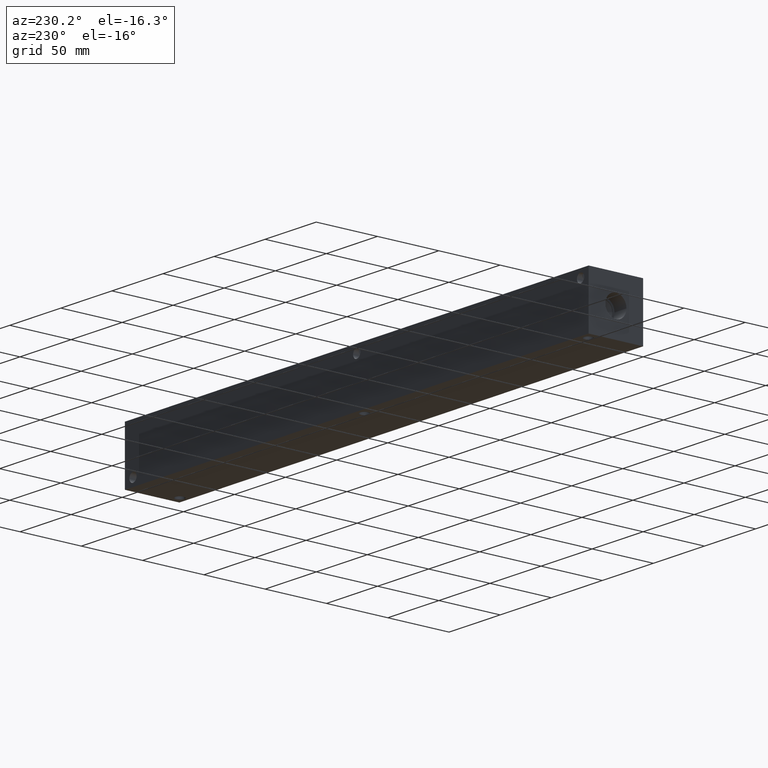
[diagram: clean part render]
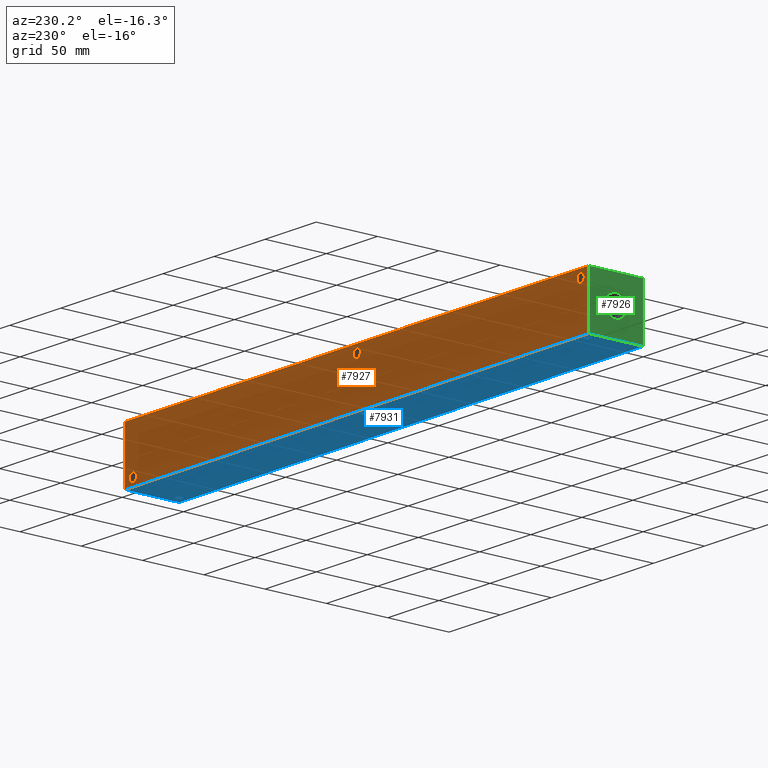
[diagram: same view with three faces highlighted in distinct colors, each labeled with its STEP entity id]
A machine part, auxiliary view with three faces highlighted in distinct colors.
Their STEP definitions:

[orange] entity #7927 — the highlighted planar face has unit normal (0, 1, 0).
#132=CIRCLE('',#8196,3.5687);
#135=CIRCLE('',#8206,3.5687);
#138=CIRCLE('',#8215,3.5687);
#341=FACE_BOUND('',#1478,.T.);
#342=FACE_BOUND('',#1479,.T.);
#343=FACE_BOUND('',#1480,.T.);
#600=PLANE('',#8447);
#1006=FACE_OUTER_BOUND('',#1477,.T.);
#1477=EDGE_LOOP('',(#7098,#7099,#7100,#7101));
#1478=EDGE_LOOP('',(#7102));
#1479=EDGE_LOOP('',(#7103));
#1480=EDGE_LOOP('',(#7104));
#1772=LINE('',#12047,#2507);
#2231=LINE('',#13524,#2966);
#2232=LINE('',#13527,#2967);
#2233=LINE('',#13528,#2968);
#2507=VECTOR('',#8874,10.);
#2966=VECTOR('',#10185,10.);
#2967=VECTOR('',#10188,10.);
#2968=VECTOR('',#10189,10.);
#3422=VERTEX_POINT('',#12044);
#3423=VERTEX_POINT('',#12046);
#3716=VERTEX_POINT('',#13022);
#3721=VERTEX_POINT('',#13040);
#3726=VERTEX_POINT('',#13056);
#3886=VERTEX_POINT('',#13520);
#3888=VERTEX_POINT('',#13526);
#4312=EDGE_CURVE('',#3422,#3423,#1772,.T.);
#4741=EDGE_CURVE('',#3716,#3716,#132,.T.);
#4751=EDGE_CURVE('',#3721,#3721,#135,.T.);
#4760=EDGE_CURVE('',#3726,#3726,#138,.T.);
#4971=EDGE_CURVE('',#3886,#3423,#2231,.T.);
#4972=EDGE_CURVE('',#3888,#3886,#2232,.T.);
#4973=EDGE_CURVE('',#3888,#3422,#2233,.T.);
#7098=ORIENTED_EDGE('',*,*,#4972,.T.);
#7099=ORIENTED_EDGE('',*,*,#4971,.T.);
#7100=ORIENTED_EDGE('',*,*,#4312,.F.);
#7101=ORIENTED_EDGE('',*,*,#4973,.F.);
#7102=ORIENTED_EDGE('',*,*,#4741,.T.);
#7103=ORIENTED_EDGE('',*,*,#4751,.T.);
#7104=ORIENTED_EDGE('',*,*,#4760,.T.);
#7927=ADVANCED_FACE('',(#1006,#341,#342,#343),#600,.T.);
#8196=AXIS2_PLACEMENT_3D('',#13024,#9605,#9606);
#8206=AXIS2_PLACEMENT_3D('',#13042,#9628,#9629);
#8215=AXIS2_PLACEMENT_3D('',#13058,#9648,#9649);
#8447=AXIS2_PLACEMENT_3D('',#13525,#10186,#10187);
#8874=DIRECTION('',(-1.,0.,0.));
#9605=DIRECTION('center_axis',(0.,-1.,0.));
#9606=DIRECTION('ref_axis',(1.,0.,0.));
#9628=DIRECTION('center_axis',(0.,-1.,0.));
#9629=DIRECTION('ref_axis',(1.,0.,0.));
#9648=DIRECTION('center_axis',(0.,-1.,0.));
#9649=DIRECTION('ref_axis',(1.,0.,0.));
#10185=DIRECTION('',(0.,0.,1.));
#10186=DIRECTION('center_axis',(0.,1.,0.));
#10187=DIRECTION('ref_axis',(-1.,0.,0.));
#10188=DIRECTION('',(-1.,0.,0.));
#10189=DIRECTION('',(0.,0.,1.));
#12044=CARTESIAN_POINT('',(454.025,44.45,44.45));
#12046=CARTESIAN_POINT('',(0.,44.45,44.45));
#12047=CARTESIAN_POINT('',(454.025,44.45,44.45));
#13022=CARTESIAN_POINT('',(442.5061,44.45,6.35));
#13024=CARTESIAN_POINT('Origin',(446.0748,44.45,6.35));
#13040=CARTESIAN_POINT('',(4.3561,44.45,38.1));
#13042=CARTESIAN_POINT('Origin',(7.9248,44.45,38.1));
#13056=CARTESIAN_POINT('',(223.4565,44.45,38.1));
#13058=CARTESIAN_POINT('Origin',(227.0252,44.45,38.1));
#13520=CARTESIAN_POINT('',(0.,44.45,0.));
#13524=CARTESIAN_POINT('',(0.,44.45,0.));
#13525=CARTESIAN_POINT('Origin',(454.025,44.45,0.));
#13526=CARTESIAN_POINT('',(454.025,44.45,0.));
#13527=CARTESIAN_POINT('',(454.025,44.45,0.));
#13528=CARTESIAN_POINT('',(454.025,44.45,0.));

[blue] entity #7931 — the highlighted planar face has unit normal (0, 0, 1).
#209=CIRCLE('',#8329,3.5687);
#210=CIRCLE('',#8331,3.5687);
#211=CIRCLE('',#8333,3.5687);
#358=FACE_BOUND('',#1499,.T.);
#359=FACE_BOUND('',#1500,.T.);
#360=FACE_BOUND('',#1501,.T.);
#604=PLANE('',#8451);
#1010=FACE_OUTER_BOUND('',#1498,.T.);
#1498=EDGE_LOOP('',(#7144,#7145,#7146,#7147));
#1499=EDGE_LOOP('',(#7148));
#1500=EDGE_LOOP('',(#7149));
#1501=EDGE_LOOP('',(#7150));
#2229=LINE('',#13522,#2964);
#2232=LINE('',#13527,#2967);
#2234=LINE('',#13531,#2969);
#2236=LINE('',#13534,#2971);
#2964=VECTOR('',#10183,10.);
#2967=VECTOR('',#10188,10.);
#2969=VECTOR('',#10192,10.);
#2971=VECTOR('',#10196,10.);
#3807=VERTEX_POINT('',#13284);
#3808=VERTEX_POINT('',#13288);
#3809=VERTEX_POINT('',#13292);
#3886=VERTEX_POINT('',#13520);
#3887=VERTEX_POINT('',#13521);
#3888=VERTEX_POINT('',#13526);
#3889=VERTEX_POINT('',#13530);
#4864=EDGE_CURVE('',#3807,#3807,#209,.T.);
#4866=EDGE_CURVE('',#3808,#3808,#210,.T.);
#4868=EDGE_CURVE('',#3809,#3809,#211,.T.);
#4969=EDGE_CURVE('',#3886,#3887,#2229,.T.);
#4972=EDGE_CURVE('',#3888,#3886,#2232,.T.);
#4974=EDGE_CURVE('',#3889,#3888,#2234,.T.);
#4976=EDGE_CURVE('',#3887,#3889,#2236,.T.);
#7144=ORIENTED_EDGE('',*,*,#4976,.F.);
#7145=ORIENTED_EDGE('',*,*,#4969,.F.);
#7146=ORIENTED_EDGE('',*,*,#4972,.F.);
#7147=ORIENTED_EDGE('',*,*,#4974,.F.);
#7148=ORIENTED_EDGE('',*,*,#4864,.T.);
#7149=ORIENTED_EDGE('',*,*,#4866,.T.);
#7150=ORIENTED_EDGE('',*,*,#4868,.T.);
#7931=ADVANCED_FACE('',(#1010,#358,#359,#360),#604,.F.);
#8329=AXIS2_PLACEMENT_3D('',#13286,#9909,#9910);
#8331=AXIS2_PLACEMENT_3D('',#13290,#9914,#9915);
#8333=AXIS2_PLACEMENT_3D('',#13294,#9919,#9920);
#8451=AXIS2_PLACEMENT_3D('',#13536,#10199,#10200);
#9909=DIRECTION('center_axis',(0.,0.,1.));
#9910=DIRECTION('ref_axis',(1.,0.,0.));
#9914=DIRECTION('center_axis',(0.,0.,1.));
#9915=DIRECTION('ref_axis',(1.,0.,0.));
#9919=DIRECTION('center_axis',(0.,0.,1.));
#9920=DIRECTION('ref_axis',(1.,0.,0.));
#10183=DIRECTION('',(0.,-1.,0.));
#10188=DIRECTION('',(-1.,0.,0.));
#10192=DIRECTION('',(0.,1.,0.));
#10196=DIRECTION('',(1.,0.,0.));
#10199=DIRECTION('center_axis',(0.,0.,1.));
#10200=DIRECTION('ref_axis',(1.,0.,0.));
#13284=CARTESIAN_POINT('',(442.5061,6.35,0.));
#13286=CARTESIAN_POINT('Origin',(446.0748,6.35,0.));
#13288=CARTESIAN_POINT('',(4.3561,38.1,0.));
#13290=CARTESIAN_POINT('Origin',(7.9248,38.1,0.));
#13292=CARTESIAN_POINT('',(223.4565,38.1,0.));
#13294=CARTESIAN_POINT('Origin',(227.0252,38.1,0.));
#13520=CARTESIAN_POINT('',(0.,44.45,0.));
#13521=CARTESIAN_POINT('',(0.,0.,0.));
#13522=CARTESIAN_POINT('',(0.,44.45,0.));
#13526=CARTESIAN_POINT('',(454.025,44.45,0.));
#13527=CARTESIAN_POINT('',(454.025,44.45,0.));
#13530=CARTESIAN_POINT('',(454.025,0.,0.));
#13531=CARTESIAN_POINT('',(454.025,0.,0.));
#13534=CARTESIAN_POINT('',(0.,0.,0.));
#13536=CARTESIAN_POINT('Origin',(227.0125,22.225,0.));

[green] entity #7926 — the highlighted planar face has unit normal (-1, 0, 0).
#274=CIRCLE('',#8443,8.6487);
#275=CIRCLE('',#8444,8.6487);
#340=FACE_BOUND('',#1476,.T.);
#599=PLANE('',#8446);
#1005=FACE_OUTER_BOUND('',#1475,.T.);
#1475=EDGE_LOOP('',(#7092,#7093,#7094,#7095));
#1476=EDGE_LOOP('',(#7096,#7097));
#1773=LINE('',#12048,#2508);
#2229=LINE('',#13522,#2964);
#2230=LINE('',#13523,#2965);
#2231=LINE('',#13524,#2966);
#2508=VECTOR('',#8875,10.);
#2964=VECTOR('',#10183,10.);
#2965=VECTOR('',#10184,10.);
#2966=VECTOR('',#10185,10.);
#3420=VERTEX_POINT('',#12041);
#3423=VERTEX_POINT('',#12046);
#3884=VERTEX_POINT('',#13512);
#3885=VERTEX_POINT('',#13513);
#3886=VERTEX_POINT('',#13520);
#3887=VERTEX_POINT('',#13521);
#4313=EDGE_CURVE('',#3423,#3420,#1773,.T.);
#4965=EDGE_CURVE('',#3884,#3885,#274,.T.);
#4966=EDGE_CURVE('',#3885,#3884,#275,.T.);
#4969=EDGE_CURVE('',#3886,#3887,#2229,.T.);
#4970=EDGE_CURVE('',#3887,#3420,#2230,.T.);
#4971=EDGE_CURVE('',#3886,#3423,#2231,.T.);
#7092=ORIENTED_EDGE('',*,*,#4969,.T.);
#7093=ORIENTED_EDGE('',*,*,#4970,.T.);
#7094=ORIENTED_EDGE('',*,*,#4313,.F.);
#7095=ORIENTED_EDGE('',*,*,#4971,.F.);
#7096=ORIENTED_EDGE('',*,*,#4965,.T.);
#7097=ORIENTED_EDGE('',*,*,#4966,.T.);
#7926=ADVANCED_FACE('',(#1005,#340),#599,.T.);
#8443=AXIS2_PLACEMENT_3D('',#13514,#10173,#10174);
#8444=AXIS2_PLACEMENT_3D('',#13515,#10175,#10176);
#8446=AXIS2_PLACEMENT_3D('',#13519,#10181,#10182);
#8875=DIRECTION('',(0.,-1.,0.));
#10173=DIRECTION('center_axis',(1.,0.,0.));
#10174=DIRECTION('ref_axis',(0.,1.,0.));
#10175=DIRECTION('center_axis',(1.,0.,0.));
#10176=DIRECTION('ref_axis',(0.,1.,0.));
#10181=DIRECTION('center_axis',(-1.,0.,0.));
#10182=DIRECTION('ref_axis',(0.,-1.,0.));
#10183=DIRECTION('',(0.,-1.,0.));
#10184=DIRECTION('',(0.,0.,1.));
#10185=DIRECTION('',(0.,0.,1.));
#12041=CARTESIAN_POINT('',(0.,0.,44.45));
#12046=CARTESIAN_POINT('',(0.,44.45,44.45));
#12048=CARTESIAN_POINT('',(0.,44.45,44.45));
#13512=CARTESIAN_POINT('',(0.,30.8737,22.225));
#13513=CARTESIAN_POINT('',(0.,13.5763,22.225));
#13514=CARTESIAN_POINT('Origin',(0.,22.225,22.225));
#13515=CARTESIAN_POINT('Origin',(0.,22.225,22.225));
#13519=CARTESIAN_POINT('Origin',(0.,44.45,0.));
#13520=CARTESIAN_POINT('',(0.,44.45,0.));
#13521=CARTESIAN_POINT('',(0.,0.,0.));
#13522=CARTESIAN_POINT('',(0.,44.45,0.));
#13523=CARTESIAN_POINT('',(0.,0.,0.));
#13524=CARTESIAN_POINT('',(0.,44.45,0.));